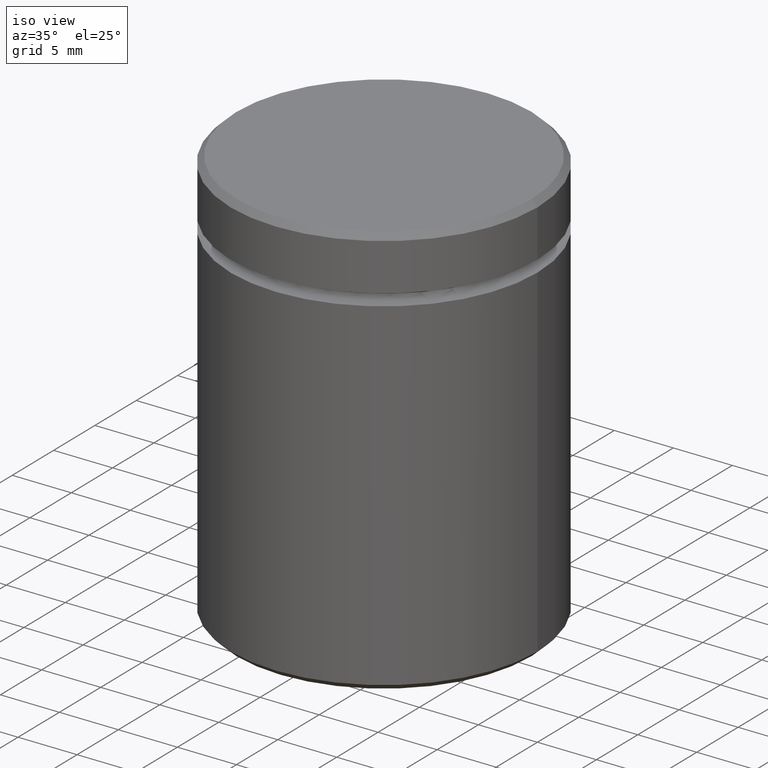
[diagram: clean part render]
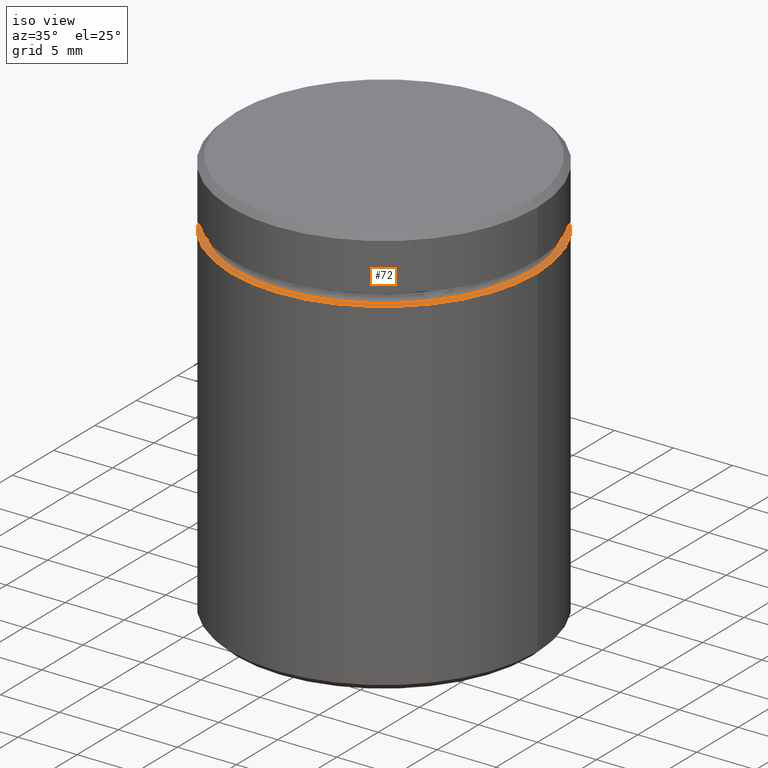
[diagram: same view with one face highlighted and labeled with its STEP entity id]
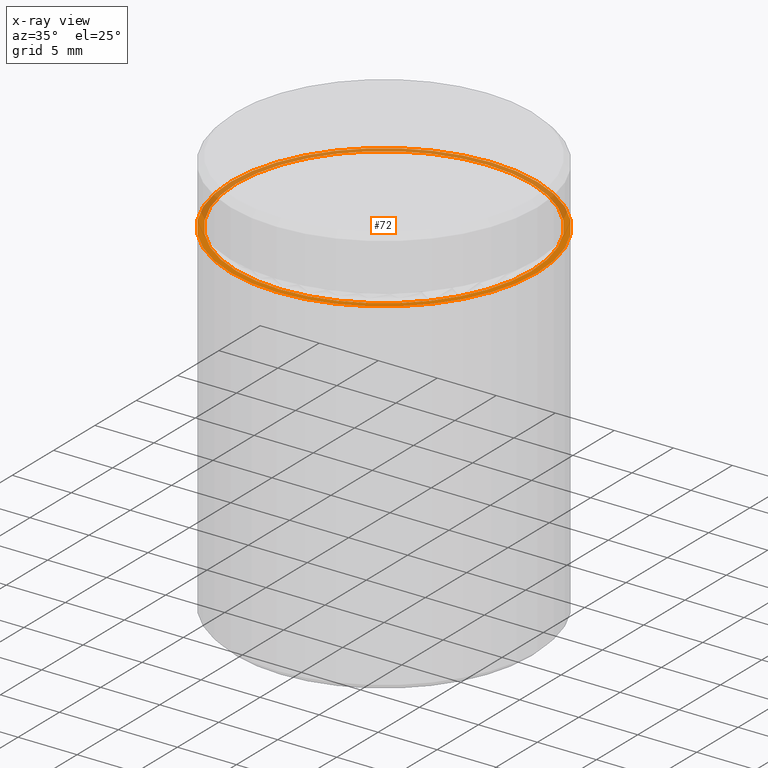
[diagram: x-ray of the same camera — body ghosted, the highlighted face saturated]
A machine part, iso view. The second image highlights one B-rep face of the part: STEP entity #72.
The next image is the same camera in x-ray: the body ghosted, the highlighted face saturated — about 45% of this face is hidden behind the body in this view.
In plain terms, the highlighted planar face has unit normal (0, -0, 1).
Its self-contained STEP definition (entity closure, byte-faithful):
#29 = CARTESIAN_POINT ( 'NONE',  ( 0.000000000000000000, 0.000000000000000000, -5.500000000000000000 ) ) ;
#35 = CARTESIAN_POINT ( 'NONE',  ( 13.00000000000000000, 0.000000000000000000, -5.500000000000000000 ) ) ;
#36 = DIRECTION ( 'NONE',  ( 1.000000000000000000, 0.000000000000000000, 0.000000000000000000 ) ) ;
#58 = ORIENTED_EDGE ( 'NONE', *, *, #143, .T. ) ;
#72 = ADVANCED_FACE ( 'NONE', ( #478, #260 ), #513, .T. ) ;
#91 = CIRCLE ( 'NONE', #436, 13.00000000000000000 ) ;
#106 = CARTESIAN_POINT ( 'NONE',  ( 12.50000000000000000, 0.000000000000000000, -5.500000000000000000 ) ) ;
#140 = DIRECTION ( 'NONE',  ( 1.000000000000000000, 0.000000000000000000, 0.000000000000000000 ) ) ;
#141 = EDGE_LOOP ( 'NONE', ( #526, #58 ) ) ;
#143 = EDGE_CURVE ( 'NONE', #241, #482, #512, .T. ) ;
#164 = CARTESIAN_POINT ( 'NONE',  ( -13.00000000000000000, 1.592040838891559095E-15, -5.500000000000000000 ) ) ;
#175 = ORIENTED_EDGE ( 'NONE', *, *, #542, .T. ) ;
#208 = CARTESIAN_POINT ( 'NONE',  ( 0.000000000000000000, 0.000000000000000000, -5.500000000000000000 ) ) ;
#215 = DIRECTION ( 'NONE',  ( -0.000000000000000000, -0.000000000000000000, 1.000000000000000000 ) ) ;
#216 = EDGE_CURVE ( 'NONE', #390, #530, #425, .T. ) ;
#220 = CARTESIAN_POINT ( 'NONE',  ( 0.000000000000000000, 0.000000000000000000, -5.500000000000000000 ) ) ;
#241 = VERTEX_POINT ( 'NONE', #267 ) ;
#260 = FACE_OUTER_BOUND ( 'NONE', #456, .T. ) ;
#267 = CARTESIAN_POINT ( 'NONE',  ( -12.50000000000000000, 1.530808498934191521E-15, -5.500000000000000000 ) ) ;
#279 = DIRECTION ( 'NONE',  ( 0.000000000000000000, -0.000000000000000000, 1.000000000000000000 ) ) ;
#296 = DIRECTION ( 'NONE',  ( 0.000000000000000000, 0.000000000000000000, -1.000000000000000000 ) ) ;
#299 = AXIS2_PLACEMENT_3D ( 'NONE', #220, #215, #532 ) ;
#321 = AXIS2_PLACEMENT_3D ( 'NONE', #29, #296, #376 ) ;
#338 = CARTESIAN_POINT ( 'NONE',  ( 0.000000000000000000, 0.000000000000000000, -5.500000000000000000 ) ) ;
#351 = CIRCLE ( 'NONE', #321, 12.50000000000000000 ) ;
#356 = CARTESIAN_POINT ( 'NONE',  ( 0.000000000000000000, 12.00000000000000000, -5.500000000000000000 ) ) ;
#376 = DIRECTION ( 'NONE',  ( 1.000000000000000000, 0.000000000000000000, 0.000000000000000000 ) ) ;
#390 = VERTEX_POINT ( 'NONE', #164 ) ;
#425 = CIRCLE ( 'NONE', #299, 13.00000000000000000 ) ;
#431 = ORIENTED_EDGE ( 'NONE', *, *, #216, .T. ) ;
#436 = AXIS2_PLACEMENT_3D ( 'NONE', #338, #556, #36 ) ;
#450 = DIRECTION ( 'NONE',  ( 1.000000000000000000, 0.000000000000000000, 0.000000000000000000 ) ) ;
#456 = EDGE_LOOP ( 'NONE', ( #175, #431 ) ) ;
#468 = AXIS2_PLACEMENT_3D ( 'NONE', #356, #279, #450 ) ;
#469 = AXIS2_PLACEMENT_3D ( 'NONE', #208, #487, #140 ) ;
#478 = FACE_BOUND ( 'NONE', #141, .T. ) ;
#482 = VERTEX_POINT ( 'NONE', #106 ) ;
#487 = DIRECTION ( 'NONE',  ( 0.000000000000000000, 0.000000000000000000, -1.000000000000000000 ) ) ;
#512 = CIRCLE ( 'NONE', #469, 12.50000000000000000 ) ;
#513 = PLANE ( 'NONE',  #468 ) ;
#526 = ORIENTED_EDGE ( 'NONE', *, *, #534, .T. ) ;
#530 = VERTEX_POINT ( 'NONE', #35 ) ;
#532 = DIRECTION ( 'NONE',  ( 1.000000000000000000, 0.000000000000000000, 0.000000000000000000 ) ) ;
#534 = EDGE_CURVE ( 'NONE', #482, #241, #351, .T. ) ;
#542 = EDGE_CURVE ( 'NONE', #530, #390, #91, .T. ) ;
#556 = DIRECTION ( 'NONE',  ( -0.000000000000000000, -0.000000000000000000, 1.000000000000000000 ) ) ;